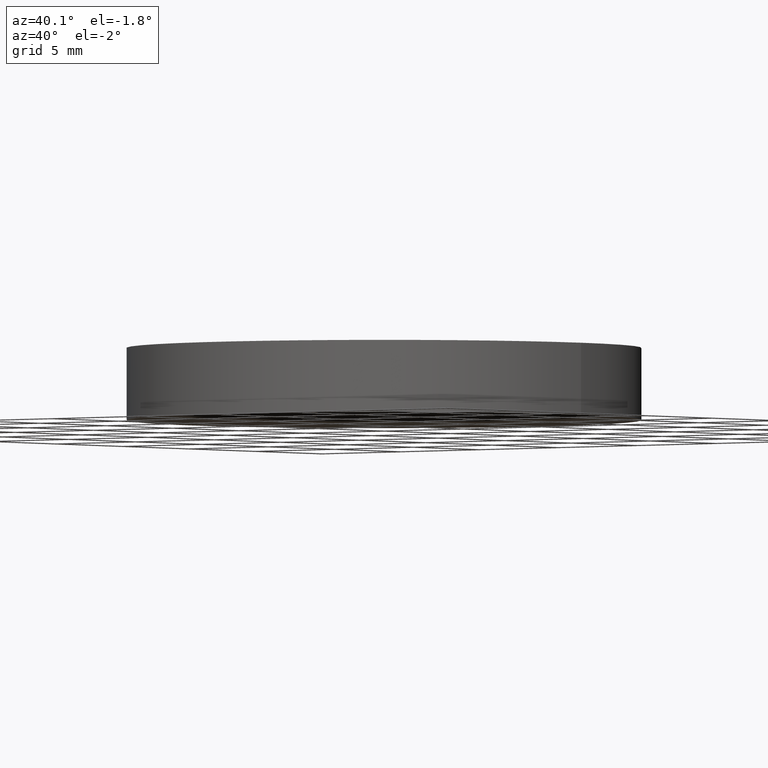
[diagram: clean part render]
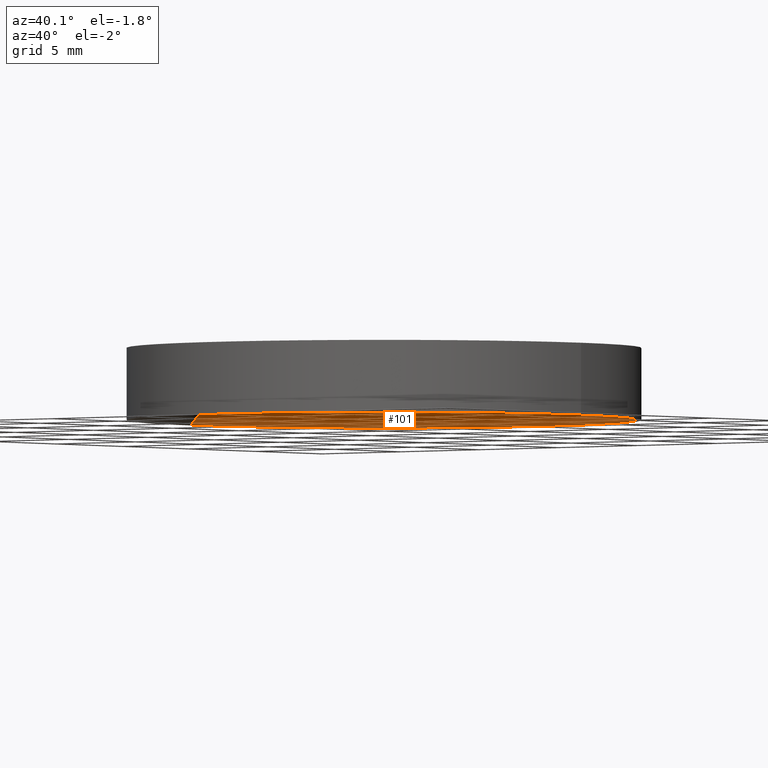
[diagram: same view with one face highlighted and labeled with its STEP entity id]
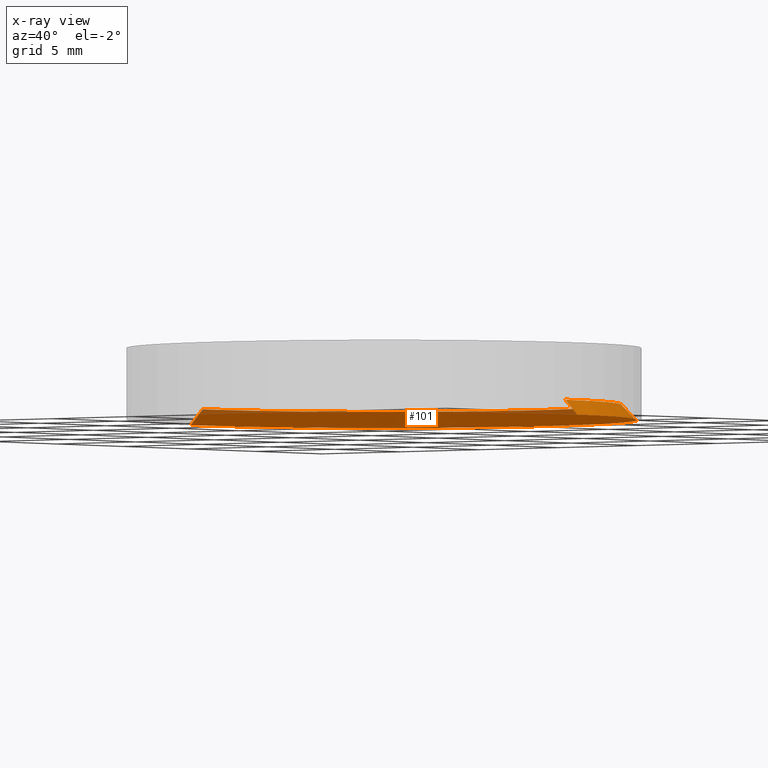
[diagram: x-ray of the same camera — body ghosted, the highlighted face saturated]
A machine part, auxiliary view. The second image highlights one B-rep face of the part: STEP entity #101.
The next image is the same camera in x-ray: the body ghosted, the highlighted face saturated — about 9% of this face is hidden behind the body in this view.
In plain terms, the highlighted conical surface has half-angle 45 deg.
Its self-contained STEP definition (entity closure, byte-faithful):
#1 = CONICAL_SURFACE ( 'NONE', #335, 11.50000000000000000, 0.7853981633974471688 ) ;
#7 = DIRECTION ( 'NONE',  ( -0.7071067811865467956, 0.000000000000000000, -0.7071067811865483499 ) ) ;
#15 = DIRECTION ( 'NONE',  ( 0.000000000000000000, 0.000000000000000000, -1.000000000000000000 ) ) ;
#21 = VERTEX_POINT ( 'NONE', #152 ) ;
#41 = FACE_OUTER_BOUND ( 'NONE', #384, .T. ) ;
#43 = CARTESIAN_POINT ( 'NONE',  ( 11.50000000000000000, 1.408343819019456176E-15, 0.7500000000000093259 ) ) ;
#45 = VECTOR ( 'NONE', #7, 1000.000000000000000 ) ;
#58 = ORIENTED_EDGE ( 'NONE', *, *, #362, .F. ) ;
#78 = CARTESIAN_POINT ( 'NONE',  ( 0.000000000000000000, 0.000000000000000000, 0.000000000000000000 ) ) ;
#89 = VERTEX_POINT ( 'NONE', #151 ) ;
#96 = CIRCLE ( 'NONE', #132, 11.50000000000000000 ) ;
#97 = CARTESIAN_POINT ( 'NONE',  ( 11.50000000000000000, 1.454268073987482448E-15, 0.7500000000000000000 ) ) ;
#101 = ADVANCED_FACE ( 'NONE', ( #41 ), #1, .F. ) ;
#108 = CARTESIAN_POINT ( 'NONE',  ( 0.000000000000000000, 0.000000000000000000, 0.7500000000000093259 ) ) ;
#130 = EDGE_CURVE ( 'NONE', #354, #89, #389, .T. ) ;
#132 = AXIS2_PLACEMENT_3D ( 'NONE', #136, #268, #404 ) ;
#136 = CARTESIAN_POINT ( 'NONE',  ( 0.000000000000000000, 0.000000000000000000, 0.7500000000000000000 ) ) ;
#149 = DIRECTION ( 'NONE',  ( 1.000000000000000000, 0.000000000000000000, 0.000000000000000000 ) ) ;
#151 = CARTESIAN_POINT ( 'NONE',  ( -12.25000000000000711, 0.000000000000000000, 0.000000000000000000 ) ) ;
#152 = CARTESIAN_POINT ( 'NONE',  ( -11.50000000000000000, 0.000000000000000000, 0.7500000000000000000 ) ) ;
#175 = CARTESIAN_POINT ( 'NONE',  ( 12.25000000000000711, 1.500192328955508523E-15, 0.000000000000000000 ) ) ;
#177 = DIRECTION ( 'NONE',  ( -1.000000000000000000, 0.000000000000000000, 0.000000000000000000 ) ) ;
#181 = DIRECTION ( 'NONE',  ( 0.7071067811865467956, 8.659560562354925463E-17, -0.7071067811865483499 ) ) ;
#188 = ORIENTED_EDGE ( 'NONE', *, *, #130, .F. ) ;
#201 = AXIS2_PLACEMENT_3D ( 'NONE', #78, #305, #149 ) ;
#214 = LINE ( 'NONE', #43, #312 ) ;
#231 = VERTEX_POINT ( 'NONE', #97 ) ;
#268 = DIRECTION ( 'NONE',  ( 0.000000000000000000, 0.000000000000000000, -1.000000000000000000 ) ) ;
#283 = EDGE_CURVE ( 'NONE', #21, #89, #301, .T. ) ;
#285 = ORIENTED_EDGE ( 'NONE', *, *, #283, .T. ) ;
#301 = LINE ( 'NONE', #331, #45 ) ;
#305 = DIRECTION ( 'NONE',  ( 0.000000000000000000, 0.000000000000000000, 1.000000000000000000 ) ) ;
#312 = VECTOR ( 'NONE', #181, 1000.000000000000000 ) ;
#331 = CARTESIAN_POINT ( 'NONE',  ( -11.50000000000000000, 0.000000000000000000, 0.7500000000000093259 ) ) ;
#335 = AXIS2_PLACEMENT_3D ( 'NONE', #108, #15, #177 ) ;
#354 = VERTEX_POINT ( 'NONE', #175 ) ;
#362 = EDGE_CURVE ( 'NONE', #21, #231, #96, .T. ) ;
#384 = EDGE_LOOP ( 'NONE', ( #409, #58, #285, #188 ) ) ;
#389 = CIRCLE ( 'NONE', #201, 12.25000000000000711 ) ;
#399 = EDGE_CURVE ( 'NONE', #231, #354, #214, .T. ) ;
#404 = DIRECTION ( 'NONE',  ( -1.000000000000000000, 0.000000000000000000, 0.000000000000000000 ) ) ;
#409 = ORIENTED_EDGE ( 'NONE', *, *, #399, .F. ) ;